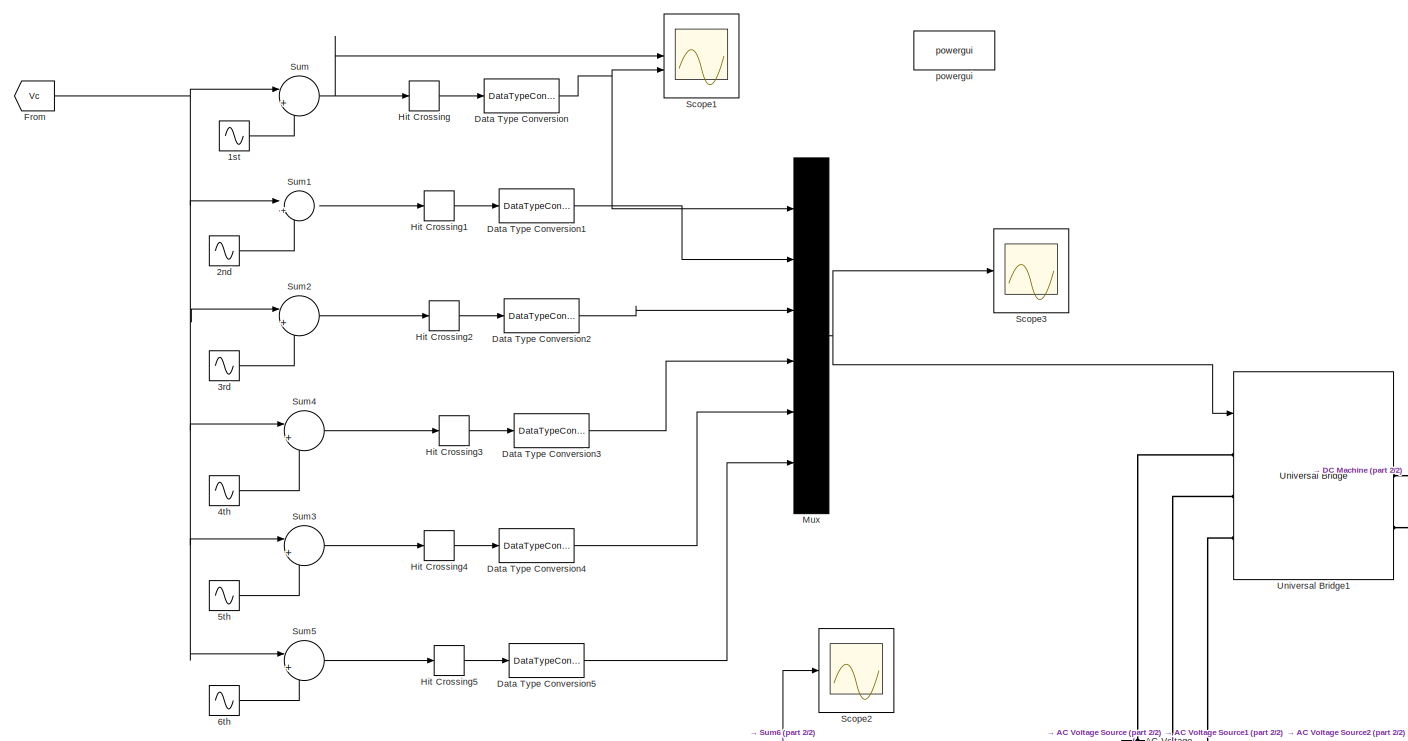
[diagram: root canvas - part 1/2, center side, full height]
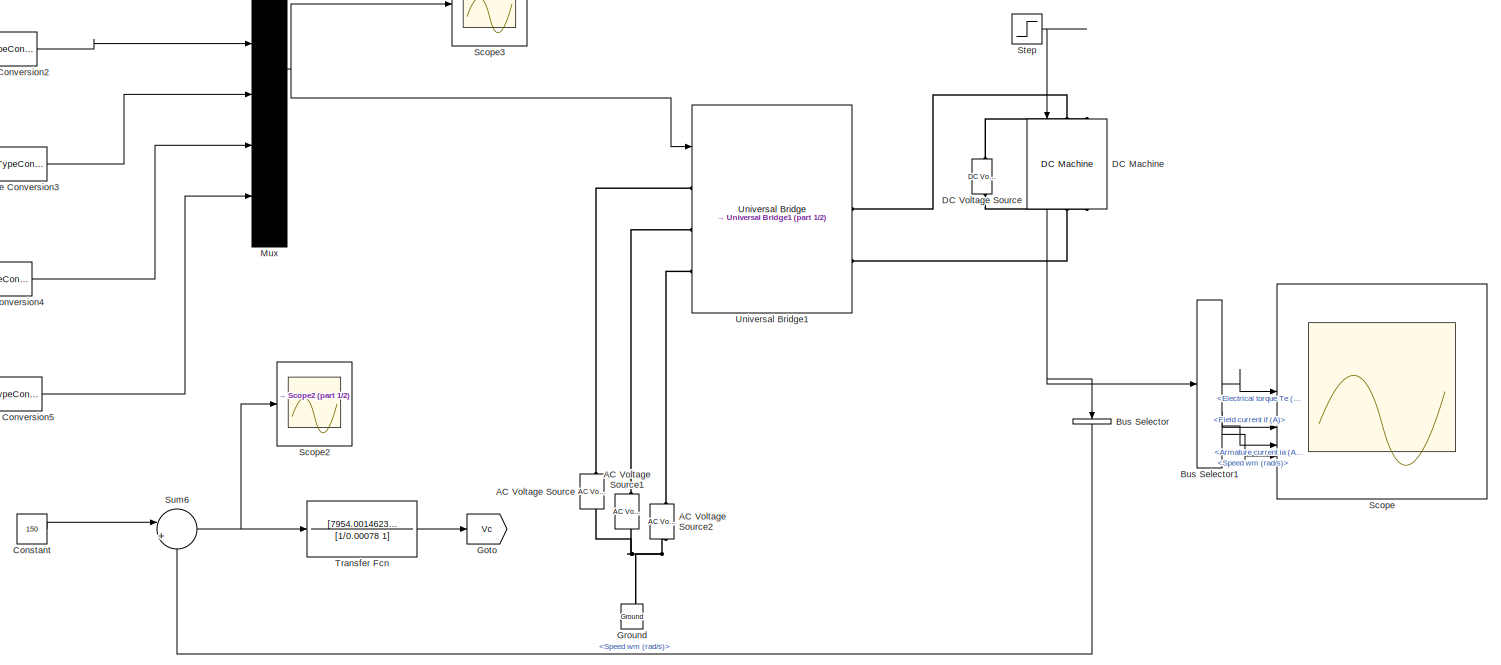
[diagram: root canvas - part 2/2, full width, middle band]
MODEL slx_90570110c4ee
KIND model
CONFIG AbsTol = auto
CONFIG EnableMultiTasking = off
CONFIG FixedStep = auto
CONFIG MaxStep = auto
CONFIG MinStep = auto
CONFIG RelTol = 1e-3
CONFIG SampleTimeConstraint = Unconstrained
CONFIG SolverName = VariableStepAuto
CONFIG StartTime = 0.0
CONFIG StopTime = 10
BLOCK [Sin] 1st
  Amplitude = 240
  Frequency = 2*pi*50
  Phase = pi/3
  SampleTime = 5e-05
BLOCK [Sin] 2nd
  Amplitude = 240
  Frequency = 2*pi*50
  SampleTime = 5e-05
BLOCK [Sin] 3rd
  Amplitude = 240
  Frequency = 2*pi*50
  Phase = -pi/3
  SampleTime = 5e-05
BLOCK [Sin] 4th
  Amplitude = 240
  Frequency = 2*pi*50
  Phase = -2*pi/3
  SampleTime = 5e-05
BLOCK [Sin] 5th
  Amplitude = 240
  Frequency = 2*pi*50
  Phase = pi
  SampleTime = 5e-05
BLOCK [Sin] 6th
  Amplitude = 240
  Frequency = 2*pi*50
  Phase = 2*pi/3
  SampleTime = 5e-05
BLOCK [Reference] AC Voltage Source  REF=spsACVoltageSourceLib/AC Voltage Source
  LibrarySourceBlock = sps_lib/Sources/AC Voltage Source
  SourceBlock = spsACVoltageSourceLib/AC Voltage Source
  SourceType = AC Voltage Source
BLOCK [Reference] AC Voltage Source1  REF=spsACVoltageSourceLib/AC Voltage Source
  LibrarySourceBlock = sps_lib/Sources/AC Voltage Source
  SourceBlock = spsACVoltageSourceLib/AC Voltage Source
  SourceType = AC Voltage Source
BLOCK [Reference] AC Voltage Source2  REF=spsACVoltageSourceLib/AC Voltage Source
  LibrarySourceBlock = sps_lib/Sources/AC Voltage Source
  SourceBlock = spsACVoltageSourceLib/AC Voltage Source
  SourceType = AC Voltage Source
BLOCK [BusSelector] Bus Selector
  NameLocation = left
  OutputSignals = Speed wm (rad/s)
BLOCK [BusSelector] Bus Selector1
  OutputSignals = Electrical torque Te (n m),Field current if (A),Armature current ia (A),Speed wm (rad/s)
BLOCK [Constant] Constant
  Value = 150
BLOCK [Reference] DC Machine  REF=spsDCMachineLib/DC Machine
  LibrarySourceBlock = sps_lib/Electrical Machines/DC Machine
  NameLocation = left
  SourceBlock = spsDCMachineLib/DC Machine
  SourceType = DC machine
BLOCK [Reference] DC Voltage Source  REF=spsDCVoltageSourceLib/DC Voltage Source
  LibrarySourceBlock = sps_lib/Sources/DC Voltage Source
  SourceBlock = spsDCVoltageSourceLib/DC Voltage Source
  SourceType = DC Voltage Source
BLOCK [DataTypeConversion] Data Type Conversion
  OutDataTypeStr = double
  RndMeth = Floor
  SaturateOnIntegerOverflow = off
BLOCK [DataTypeConversion] Data Type Conversion1
  OutDataTypeStr = double
  RndMeth = Floor
  SaturateOnIntegerOverflow = off
BLOCK [DataTypeConversion] Data Type Conversion2
  OutDataTypeStr = double
  RndMeth = Floor
  SaturateOnIntegerOverflow = off
BLOCK [DataTypeConversion] Data Type Conversion3
  OutDataTypeStr = double
  RndMeth = Floor
  SaturateOnIntegerOverflow = off
BLOCK [DataTypeConversion] Data Type Conversion4
  OutDataTypeStr = double
  RndMeth = Floor
  SaturateOnIntegerOverflow = off
BLOCK [DataTypeConversion] Data Type Conversion5
  OutDataTypeStr = double
  RndMeth = Floor
  SaturateOnIntegerOverflow = off
BLOCK [From] From
  GotoTag = Vc
  TagVisibility = global
BLOCK [Goto] Goto
  GotoTag = Vc
  TagVisibility = global
BLOCK [Reference] Ground  REF=spsGroundLib/Ground
  LibrarySourceBlock = sps_lib/Utilities/Ground
  NameLocation = right
  SourceBlock = spsGroundLib/Ground
  SourceType = Ground
BLOCK [HitCross] Hit Crossing
  HitCrossingDirection = rising
BLOCK [HitCross] Hit Crossing1
  HitCrossingDirection = rising
BLOCK [HitCross] Hit Crossing2
  HitCrossingDirection = rising
BLOCK [HitCross] Hit Crossing3
  HitCrossingDirection = rising
BLOCK [HitCross] Hit Crossing4
  HitCrossingDirection = rising
BLOCK [HitCross] Hit Crossing5
  HitCrossingDirection = rising
BLOCK [Mux] Mux
  DisplayOption = bar
  Inputs = 6
BLOCK [Scope] Scope
  ActiveDisplayYMaximum = 298.03521918086295
  ActiveDisplayYMinimum = -33.118843361629011
  DataLoggingVariableName = ScopeData1
  Floating = off
  GraphicalSettings = {"Style":{"BackgroundColor":[0.12941176470588237,0.12941176470588237,0.12941176470588237],"AxesColor":[0.07058823529411765,0.07058823529411765,0.07058823529411765],"LabelsColor":[0.8509803921568627,0.8509803921568627,0.8509803921568627],"PreserveColors":false,"Visible":[true,true,true,true],"LineStyle":["-","-","-","-"],"LineWidth":[1.5,1.5,1.5,1.5],"BarWidth":[0.9,0.9,0.9,0.9],"LineColor":["auto"...<+3444ch>
  LayoutDimensionsString = [4 1]
  MultipleDisplayCache = [{"MaxYLimMag":298.03521918086295,"MaxYLimReal":298.03521918086295,"MinYLimMag":0,"MinYLimReal":-33.118843361629011,"PlotAsMagnitudePhase":false,"ShowGrid":true,"ShowLegend":false,"Title":"%<SignalLabel>","YLabel":""},{"MaxYLimMag":1.0000000000011273,"MaxYLimReal":1.0000000000011273,"MinYLimMag":0.999999999999875,"MinYLimReal":0.999999999999875,"PlotAsMagnitudePhase":false,"ShowGrid":true,"ShowLeg...<+483ch>
  NumInputPorts = 4
  ScopeFrameLocation = window
  WasSavedAsWebScope = on
  WindowPosition = [48.000000,52.000000,1440.000000,760.000000,]
BLOCK [Scope] Scope1
  ActiveDisplayYMaximum = 93176.067968128744
  ActiveDisplayYMinimum = -10317.505107577075
  DataLoggingVariableName = ScopeData1
  Floating = off
  GraphicalSettings = {"GraphicalSettings":{"LegacySettings":true,"Style":{"AxesScalingProperties":{"ScaleAxesLimitsAtStop":false},"Style":{"AxesColor":"[0 0 0]","ChannelNames":["",""],"ColorOrder":"[1 0.909803921568627 0.392156862745098;0.149019607843137 0.549019607843137 0.866666666666667;0.96078431372549 0.466666666666667 0.16078431372549;0.286274509803922 0.858823529411765 0.250980392156863;0.752941176470588 0.3607...<+662ch>
  LayoutDimensionsString = [2 1]
  MultipleDisplayCache = [{"MaxYLimMag":93176.067968128744,"MaxYLimReal":93176.067968128744,"MinYLimMag":0,"MinYLimReal":-10317.505107577075,"PlotAsMagnitudePhase":false,"ShowGrid":true,"ShowLegend":false,"Title":"%<SignalLabel>","YLabel":""},{"MaxYLimMag":1,"MaxYLimReal":1,"MinYLimMag":0,"MinYLimReal":-1,"PlotAsMagnitudePhase":false,"ShowGrid":true,"ShowLegend":false,"Title":"%<SignalLabel>","YLabel":""}]
  NumInputPorts = 2
  ScopeFrameLocation = window
  WasSavedAsWebScope = on
  WindowPosition = [-32.000000,-71.000000,1539.000000,844.000000,]
BLOCK [Scope] Scope2
  ActiveDisplayYMaximum = 116.60497
  ActiveDisplayYMinimum = -45.23464
  DataLoggingVariableName = ScopeData1
  Floating = off
  GraphicalSettings = {"GraphicalSettings":{"LegacySettings":true,"Style":{"AxesScalingProperties":{"ScaleAxesLimitsAtStop":false},"Style":{"AxesColor":"[0 0 0]","ChannelNames":[""],"ColorOrder":"[1 0.909803921568627 0.392156862745098;0.149019607843137 0.549019607843137 0.866666666666667;0.96078431372549 0.466666666666667 0.16078431372549;0.286274509803922 0.858823529411765 0.250980392156863;0.752941176470588 0.3607843...<+654ch>
  MultipleDisplayCache = [{"MaxYLimMag":116.60497,"MaxYLimReal":116.60497,"MinYLimMag":0,"MinYLimReal":-45.23464,"PlotAsMagnitudePhase":false,"ShowGrid":true,"ShowLegend":true,"Title":"%<SignalLabel>","YLabel":""}]
  NumInputPorts = 1
  ShowLegend = on
  WasSavedAsWebScope = on
  WindowPosition = [1 1 1920 1123]
BLOCK [Scope] Scope3
  ActiveDisplayYMaximum = 1.125
  ActiveDisplayYMinimum = -0.12499999999999997
  Floating = off
  GraphicalSettings = {"AxesScalingProperties":{"AlignXAxis":"Center","AlignYAxis":"Center","AutoScaleXAxisLimits":false,"AxesScaling":"Manual","AxesScalingNumUpdates":10,"ExpandOnly":true,"ScaleAxesLimitsAtStop":false,"XAxisDataRange":100,"YAxisDataRange":80},"DisplayProperties":{"ColorOrder":["auto","auto","auto","auto","auto","auto","auto","auto","auto","auto","auto","auto","auto","auto","auto","auto","auto","auto",...<+2667ch>
  MultipleDisplayCache = [{"MaxYLimMag":1.125,"MaxYLimReal":1.125,"MinYLimMag":0,"MinYLimReal":-0.12499999999999997,"PlotAsMagnitudePhase":false,"ShowGrid":true,"ShowLegend":true,"Title":"%<SignalLabel>","YLabel":""}]
  NumInputPorts = 1
  ScopeFrameLocation = window
  ShowLegend = on
  WasSavedAsWebScope = on
  WindowPosition = [-45.000000,53.000000,1539.000000,760.000000,]
BLOCK [Step] Step
  After = 50
  SampleTime = 0
  Time = 5
BLOCK [Sum] Sum
  Inputs = |+-
BLOCK [Sum] Sum1
  Inputs = |+-
BLOCK [Sum] Sum2
  Inputs = |+-
BLOCK [Sum] Sum3
  Inputs = |+-
BLOCK [Sum] Sum4
  Inputs = |+-
BLOCK [Sum] Sum5
  Inputs = |+-
BLOCK [Sum] Sum6
  Inputs = |+-
BLOCK [TransferFcn] Transfer Fcn
  Denominator = [1/0.00078 1]
  Numerator = [7954.00146233348/4 7954.00146233348]
BLOCK [Reference] Universal Bridge1  REF=spsUniversalBridgeLib/Universal Bridge
  LibrarySourceBlock = sps_lib/Power Electronics/Universal Bridge
  SourceBlock = spsUniversalBridgeLib/Universal Bridge
  SourceType = Universal Bridge
BLOCK [Reference] powergui  REF=sps_lib/powergui
  LibrarySourceBlock = sps_lib/powergui
  Priority = 1
  SourceBlock = sps_lib/powergui
  SourceType = PSB option menu block
LINE 1st:1 -> Sum:2
LINE 2nd:1 -> Sum1:2
LINE 3rd:1 -> Sum2:2
LINE 4th:1 -> Sum4:2
LINE 5th:1 -> Sum3:2
LINE 6th:1 -> Sum5:2
LINE Bus Selector1:1 -> Scope:1
LINE Bus Selector1:2 -> Scope:2
LINE Bus Selector1:3 -> Scope:3
LINE Bus Selector1:4 -> Scope:4
LINE Bus Selector:1 -> Sum6:2
LINE Constant:1 -> Sum6:1
NET DC Machine:1 -> Bus Selector1:1, Bus Selector:1
LINE Data Type Conversion1:1 -> Mux:2
LINE Data Type Conversion2:1 -> Mux:3
LINE Data Type Conversion3:1 -> Mux:4
LINE Data Type Conversion4:1 -> Mux:5
LINE Data Type Conversion5:1 -> Mux:6
NET Data Type Conversion:1 -> Mux:1, Scope1:2
NET From:1 -> Sum1:1, Sum2:1, Sum3:1, Sum4:1, Sum5:1, Sum:1
LINE Hit Crossing1:1 -> Data Type Conversion1:1
LINE Hit Crossing2:1 -> Data Type Conversion2:1
LINE Hit Crossing3:1 -> Data Type Conversion3:1
LINE Hit Crossing4:1 -> Data Type Conversion4:1
LINE Hit Crossing5:1 -> Data Type Conversion5:1
LINE Hit Crossing:1 -> Data Type Conversion:1
NET Mux:1 -> Scope3:1, Universal Bridge1:1
LINE Step:1 -> DC Machine:1
LINE Sum1:1 -> Hit Crossing1:1
LINE Sum2:1 -> Hit Crossing2:1
LINE Sum3:1 -> Hit Crossing4:1
LINE Sum4:1 -> Hit Crossing3:1
LINE Sum5:1 -> Hit Crossing5:1
NET Sum6:1 -> Scope2:1, Transfer Fcn:1
NET Sum:1 -> Hit Crossing:1, Scope1:1
LINE Transfer Fcn:1 -> Goto:1
PNET net1: AC Voltage Source1:LConn1 -- AC Voltage Source2:LConn1 -- AC Voltage Source:LConn1 -- Ground:LConn1
PLINE AC Voltage Source1:RConn1 -- Universal Bridge1:LConn2
PLINE AC Voltage Source2:RConn1 -- Universal Bridge1:LConn3
PLINE AC Voltage Source:RConn1 -- Universal Bridge1:LConn1
PLINE DC Machine:LConn1 -- Universal Bridge1:RConn1
PLINE DC Machine:LConn2 -- DC Voltage Source:RConn1
PLINE DC Machine:RConn1 -- Universal Bridge1:RConn2
PLINE DC Machine:RConn2 -- DC Voltage Source:LConn1
note: NET lines group one-source signal fan-out (src -> all destinations, sorted); 1:1 wires keep LINE; PNET lines group multi-terminal physical nets as a canonical sorted terminal list (undirected conserving connections); 2-terminal nets keep the pairwise PLINE form
